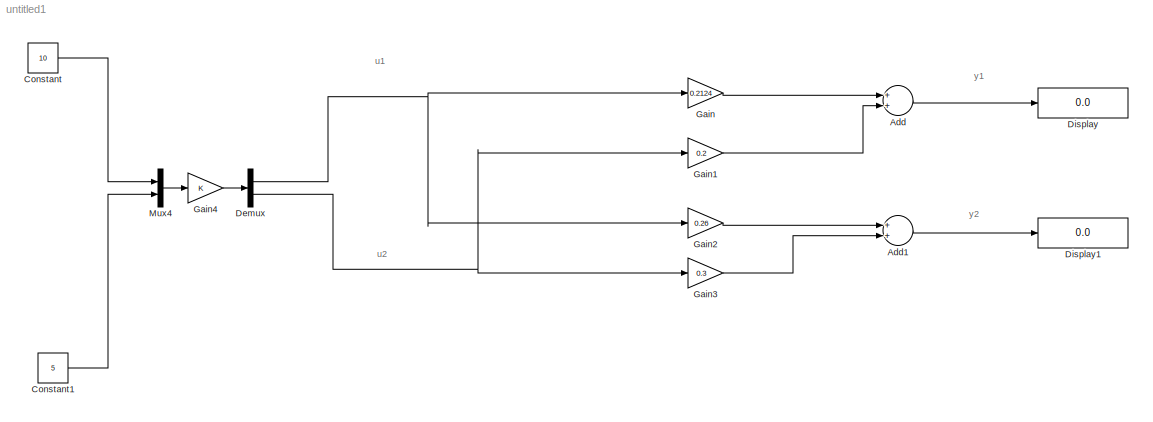
MODEL untitled1
KIND model
BLOCK [Sum] Add
  InputSameDT = off
  OutDataTypeStr = Inherit: Inherit via internal rule
  Ports = [2, 1]
  SID = 5
  SaturateOnIntegerOverflow = off
BLOCK [Sum] Add1
  InputSameDT = off
  OutDataTypeStr = Inherit: Inherit via internal rule
  Ports = [2, 1]
  SID = 6
  SaturateOnIntegerOverflow = off
BLOCK [Constant] Constant
  SID = 11
  Value = 10
BLOCK [Constant] Constant1
  SID = 12
  Value = 5
BLOCK [Demux] Demux
  DisplayOption = bar
  Outputs = 2
  Ports = [1, 2]
  SID = 8
BLOCK [Display] Display
  Decimation = 1
  Lockdown = off
  Ports = [1]
  SID = 13
BLOCK [Display] Display1
  Decimation = 1
  Lockdown = off
  Ports = [1]
  SID = 14
BLOCK [Gain] Gain
  Gain = 0.2124
  Multiplication = Matrix(K*u)
  OutDataTypeStr = Inherit: Inherit via internal rule
  ParamDataTypeStr = Inherit: Inherit via internal rule
  SID = 1
  SaturateOnIntegerOverflow = off
BLOCK [Gain] Gain1
  Gain = 0.2
  Multiplication = Matrix(K*u)
  OutDataTypeStr = Inherit: Inherit via internal rule
  ParamDataTypeStr = Inherit: Inherit via internal rule
  SID = 2
  SaturateOnIntegerOverflow = off
BLOCK [Gain] Gain2
  Gain = 0.26
  Multiplication = Matrix(K*u)
  OutDataTypeStr = Inherit: Inherit via internal rule
  ParamDataTypeStr = Inherit: Inherit via internal rule
  SID = 3
  SaturateOnIntegerOverflow = off
BLOCK [Gain] Gain3
  Gain = 0.3
  Multiplication = Matrix(K*u)
  OutDataTypeStr = Inherit: Inherit via internal rule
  ParamDataTypeStr = Inherit: Inherit via internal rule
  SID = 4
  SaturateOnIntegerOverflow = off
BLOCK [Gain] Gain4
  Gain = K
  Multiplication = Matrix(K*u)
  OutDataTypeStr = Inherit: Inherit via internal rule
  ParamDataTypeStr = Inherit: Inherit via internal rule
  SID = 9
  SaturateOnIntegerOverflow = off
BLOCK [Mux] Mux4
  DisplayOption = bar
  Inputs = 2
  Ports = [2, 1]
  SID = 10
ANNOTATION (root): u1
ANNOTATION (root): u2
ANNOTATION (root): y1
ANNOTATION (root): y2
LINE Add1:1 -> Display1:1
LINE Add:1 -> Display:1
LINE Constant1:1 -> Mux4:2
LINE Constant:1 -> Mux4:1
NET Demux:1 -> Gain2:1, Gain:1
NET Demux:2 -> Gain1:1, Gain3:1
LINE Gain1:1 -> Add:2
LINE Gain2:1 -> Add1:1
LINE Gain3:1 -> Add1:2
LINE Gain4:1 -> Demux:1
LINE Gain:1 -> Add:1
LINE Mux4:1 -> Gain4:1
note: NET lines group one-source signal fan-out (src -> all destinations, sorted); 1:1 wires keep LINE
